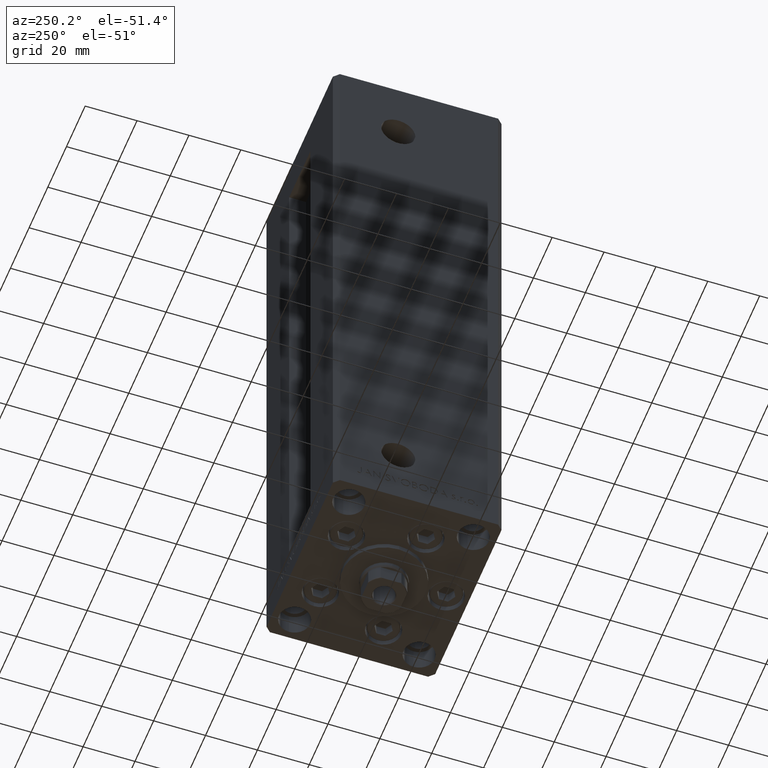
[diagram: clean part render]
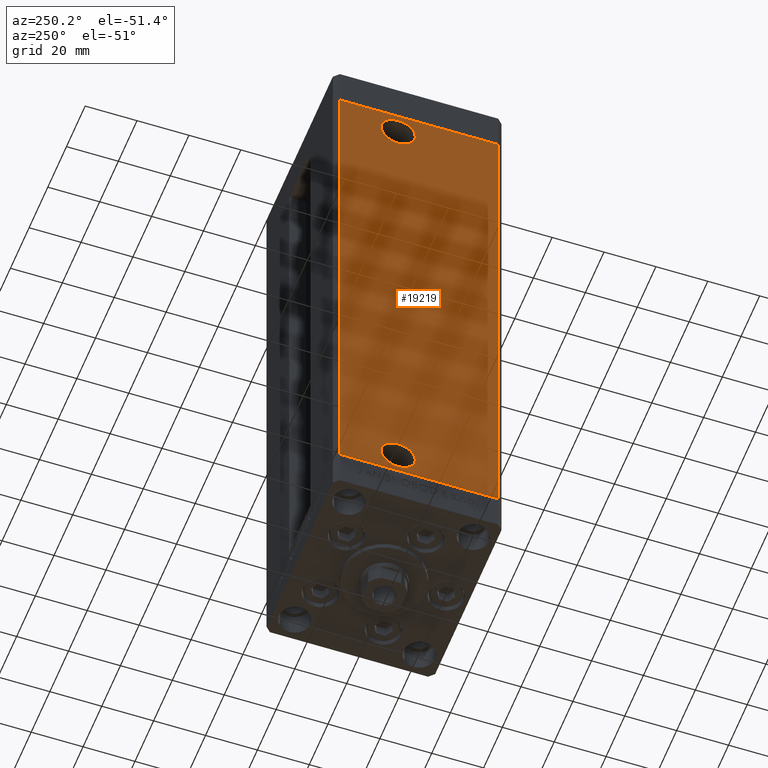
[diagram: same view with one face highlighted and labeled with its STEP entity id]
A machine part, auxiliary view. The second image highlights one B-rep face of the part: STEP entity #19219.
In plain terms, the highlighted planar face has unit normal (1, 0, 0).
Its self-contained STEP definition (entity closure, byte-faithful):
#245 = DIRECTION ( 'NONE',  ( 2.275047181608927644E-16, -1.000000000000000000, 0.000000000000000000 ) ) ;
#1496 = EDGE_CURVE ( 'NONE', #23079, #36318, #37781, .T. ) ;
#3015 = ORIENTED_EDGE ( 'NONE', *, *, #1496, .F. ) ;
#3076 = VERTEX_POINT ( 'NONE', #34980 ) ;
#3183 = DIRECTION ( 'NONE',  ( -1.000000000000000000, -2.275047181608927644E-16, 0.000000000000000000 ) ) ;
#3201 = CARTESIAN_POINT ( 'NONE',  ( -37.50000000000000711, 30.50000000000000000, 0.000000000000000000 ) ) ;
#3426 = CARTESIAN_POINT ( 'NONE',  ( -37.50000000000000711, 30.50000000000000000, 206.0000000000000000 ) ) ;
#4018 = LINE ( 'NONE', #34661, #10860 ) ;
#4800 = CARTESIAN_POINT ( 'NONE',  ( -37.50000000000000000, 7.999999999999977796, 9.000000000000007105 ) ) ;
#5303 = CARTESIAN_POINT ( 'NONE',  ( -37.50000000000000711, 30.50000000000000000, 206.0000000000000000 ) ) ;
#5606 = VERTEX_POINT ( 'NONE', #32896 ) ;
#7904 = EDGE_CURVE ( 'NONE', #31803, #5606, #24501, .T. ) ;
#8301 = CARTESIAN_POINT ( 'NONE',  ( -37.50000000000000000, 1.419999999999975948, 196.9999999999999716 ) ) ;
#9927 = VECTOR ( 'NONE', #17204, 1000.000000000000000 ) ;
#10360 = AXIS2_PLACEMENT_3D ( 'NONE', #4800, #12320, #42488 ) ;
#10474 = EDGE_CURVE ( 'NONE', #3076, #36680, #27412, .T. ) ;
#10860 = VECTOR ( 'NONE', #245, 1000.000000000000000 ) ;
#10952 = DIRECTION ( 'NONE',  ( -2.275047181608928137E-16, 1.000000000000000000, 0.000000000000000000 ) ) ;
#12181 = ORIENTED_EDGE ( 'NONE', *, *, #27670, .F. ) ;
#12223 = EDGE_CURVE ( 'NONE', #5606, #36680, #37609, .T. ) ;
#12320 = DIRECTION ( 'NONE',  ( -1.000000000000000000, -2.275047181608927644E-16, 0.000000000000000000 ) ) ;
#12687 = CARTESIAN_POINT ( 'NONE',  ( -37.50000000000000711, 30.50000000000000000, 206.0000000000000000 ) ) ;
#12818 = EDGE_LOOP ( 'NONE', ( #13082, #35654, #35378, #20189 ) ) ;
#13082 = ORIENTED_EDGE ( 'NONE', *, *, #12223, .T. ) ;
#13434 = CARTESIAN_POINT ( 'NONE',  ( -37.50000000000000000, 1.419999999999975060, 9.000000000000007105 ) ) ;
#16323 = DIRECTION ( 'NONE',  ( -1.000000000000000000, -2.275047181608927644E-16, 0.000000000000000000 ) ) ;
#16771 = CIRCLE ( 'NONE', #32817, 6.580000000000015170 ) ;
#17204 = DIRECTION ( 'NONE',  ( -0.000000000000000000, -0.000000000000000000, -1.000000000000000000 ) ) ;
#17689 = EDGE_LOOP ( 'NONE', ( #3015, #45728 ) ) ;
#18480 = DIRECTION ( 'NONE',  ( 0.000000000000000000, -1.000000000000000000, 0.000000000000000000 ) ) ;
#18498 = DIRECTION ( 'NONE',  ( 2.275047181608927644E-16, -1.000000000000000000, 0.000000000000000000 ) ) ;
#18691 = AXIS2_PLACEMENT_3D ( 'NONE', #28221, #20168, #23946 ) ;
#19219 = ADVANCED_FACE ( 'NONE', ( #26033, #23000, #37837 ), #48678, .F. ) ;
#20168 = DIRECTION ( 'NONE',  ( -1.000000000000000000, -2.275047181608927644E-16, 0.000000000000000000 ) ) ;
#20189 = ORIENTED_EDGE ( 'NONE', *, *, #7904, .T. ) ;
#20867 = EDGE_CURVE ( 'NONE', #25621, #36146, #31548, .T. ) ;
#23000 = FACE_BOUND ( 'NONE', #49574, .T. ) ;
#23079 = VERTEX_POINT ( 'NONE', #13434 ) ;
#23338 = AXIS2_PLACEMENT_3D ( 'NONE', #28136, #16323, #27889 ) ;
#23946 = DIRECTION ( 'NONE',  ( 0.000000000000000000, -1.000000000000000000, 0.000000000000000000 ) ) ;
#24367 = AXIS2_PLACEMENT_3D ( 'NONE', #3426, #48924, #10952 ) ;
#24376 = VECTOR ( 'NONE', #18498, 1000.000000000000000 ) ;
#24501 = LINE ( 'NONE', #12687, #9927 ) ;
#24508 = EDGE_CURVE ( 'NONE', #36318, #23079, #42471, .T. ) ;
#25621 = VERTEX_POINT ( 'NONE', #8301 ) ;
#26033 = FACE_BOUND ( 'NONE', #17689, .T. ) ;
#27334 = ORIENTED_EDGE ( 'NONE', *, *, #20867, .F. ) ;
#27412 = LINE ( 'NONE', #35959, #32468 ) ;
#27670 = EDGE_CURVE ( 'NONE', #36146, #25621, #16771, .T. ) ;
#27763 = CARTESIAN_POINT ( 'NONE',  ( -37.49999999999999289, -30.50000000000000000, 0.000000000000000000 ) ) ;
#27889 = DIRECTION ( 'NONE',  ( 0.000000000000000000, -1.000000000000000000, 0.000000000000000000 ) ) ;
#28136 = CARTESIAN_POINT ( 'NONE',  ( -37.50000000000000000, 7.999999999999977796, 9.000000000000007105 ) ) ;
#28221 = CARTESIAN_POINT ( 'NONE',  ( -37.50000000000000000, 7.999999999999991118, 196.9999999999999716 ) ) ;
#31548 = CIRCLE ( 'NONE', #18691, 6.580000000000015170 ) ;
#31803 = VERTEX_POINT ( 'NONE', #5303 ) ;
#32468 = VECTOR ( 'NONE', #35204, 1000.000000000000000 ) ;
#32817 = AXIS2_PLACEMENT_3D ( 'NONE', #42600, #3183, #18480 ) ;
#32896 = CARTESIAN_POINT ( 'NONE',  ( -37.50000000000000711, 30.50000000000000000, 0.000000000000000000 ) ) ;
#34620 = CARTESIAN_POINT ( 'NONE',  ( -37.50000000000000000, 14.57999999999998053, 9.000000000000007105 ) ) ;
#34661 = CARTESIAN_POINT ( 'NONE',  ( -37.50000000000000711, 30.50000000000000000, 206.0000000000000000 ) ) ;
#34980 = CARTESIAN_POINT ( 'NONE',  ( -37.49999999999999289, -30.50000000000000000, 206.0000000000000000 ) ) ;
#35204 = DIRECTION ( 'NONE',  ( -0.000000000000000000, -0.000000000000000000, -1.000000000000000000 ) ) ;
#35378 = ORIENTED_EDGE ( 'NONE', *, *, #48649, .F. ) ;
#35654 = ORIENTED_EDGE ( 'NONE', *, *, #10474, .F. ) ;
#35959 = CARTESIAN_POINT ( 'NONE',  ( -37.49999999999999289, -30.50000000000000000, 206.0000000000000000 ) ) ;
#36146 = VERTEX_POINT ( 'NONE', #46056 ) ;
#36318 = VERTEX_POINT ( 'NONE', #34620 ) ;
#36680 = VERTEX_POINT ( 'NONE', #27763 ) ;
#37609 = LINE ( 'NONE', #3201, #24376 ) ;
#37781 = CIRCLE ( 'NONE', #23338, 6.580000000000002736 ) ;
#37837 = FACE_OUTER_BOUND ( 'NONE', #12818, .T. ) ;
#42471 = CIRCLE ( 'NONE', #10360, 6.580000000000002736 ) ;
#42488 = DIRECTION ( 'NONE',  ( 0.000000000000000000, -1.000000000000000000, 0.000000000000000000 ) ) ;
#42600 = CARTESIAN_POINT ( 'NONE',  ( -37.50000000000000000, 7.999999999999991118, 196.9999999999999716 ) ) ;
#45728 = ORIENTED_EDGE ( 'NONE', *, *, #24508, .F. ) ;
#46056 = CARTESIAN_POINT ( 'NONE',  ( -37.50000000000000000, 14.58000000000000718, 196.9999999999999716 ) ) ;
#48649 = EDGE_CURVE ( 'NONE', #31803, #3076, #4018, .T. ) ;
#48678 = PLANE ( 'NONE',  #24367 ) ;
#48924 = DIRECTION ( 'NONE',  ( 1.000000000000000000, 2.275047181608928137E-16, -0.000000000000000000 ) ) ;
#49574 = EDGE_LOOP ( 'NONE', ( #27334, #12181 ) ) ;